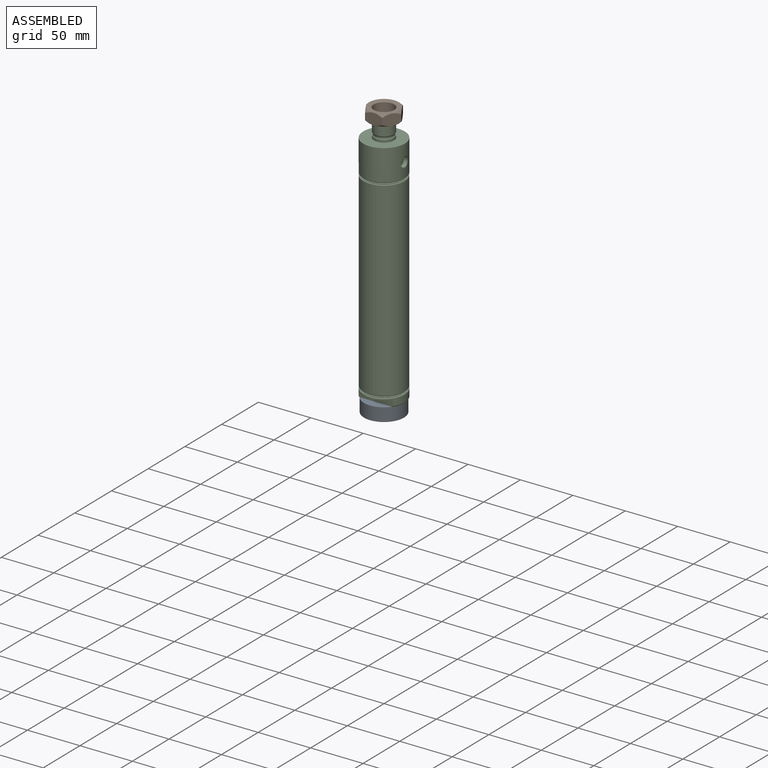
[diagram: assembled view]
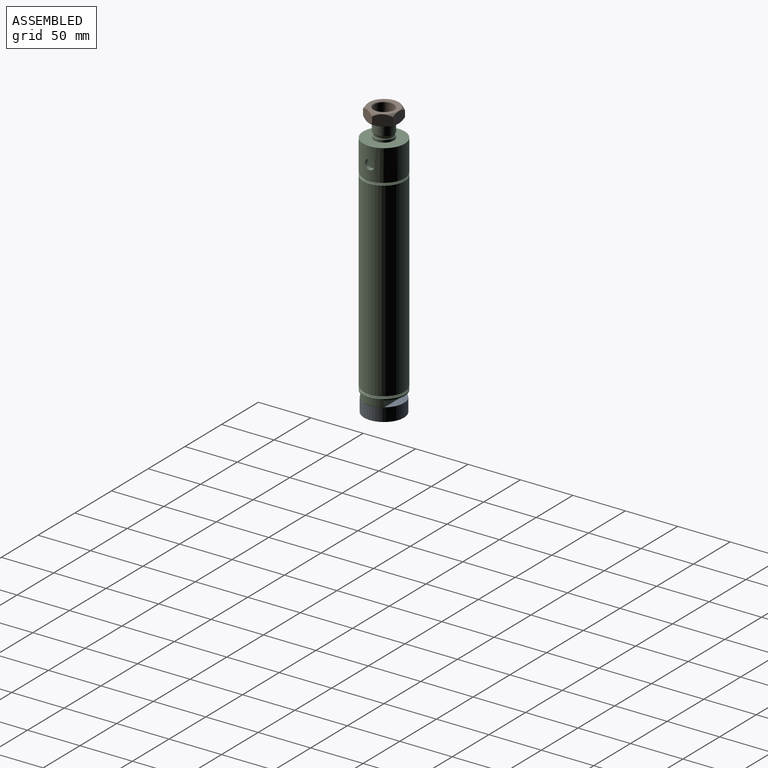
[diagram: assembled view, second angle]
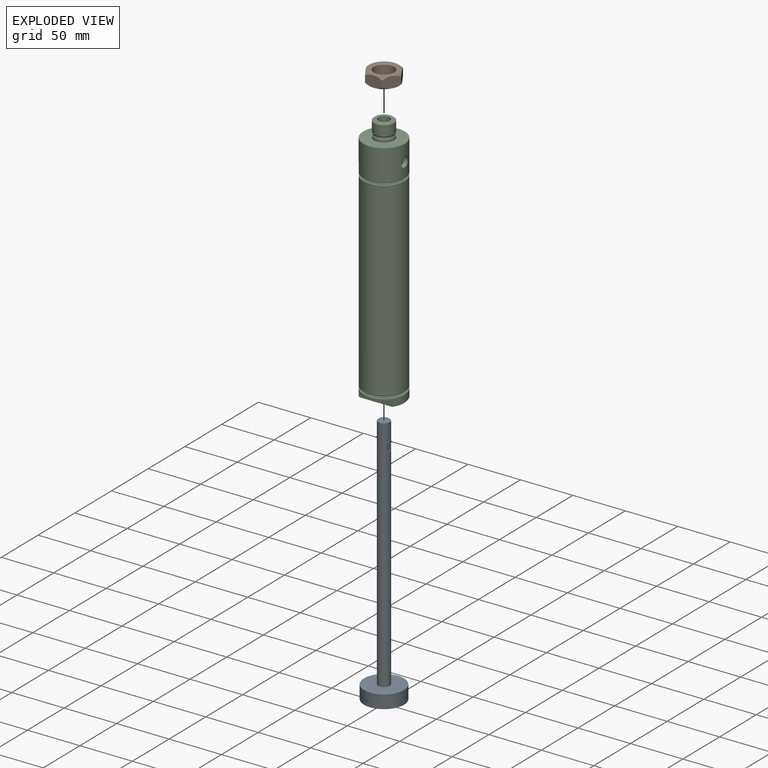
[diagram: exploded view]
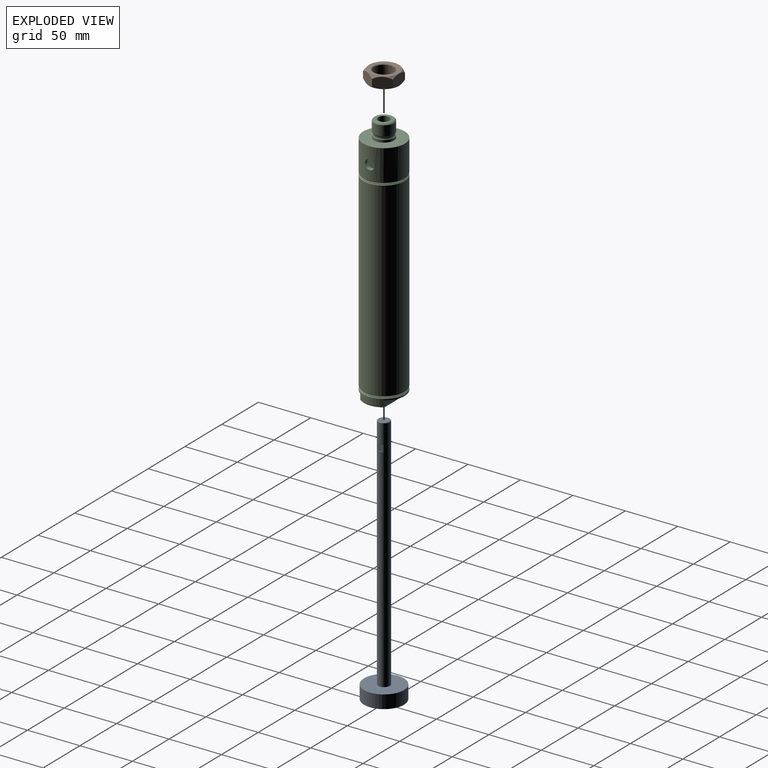
[diagram: exploded view, second angle]
ASSEMBLY  parts=3 mates=2
PART A: 12 faces, bbox 38.1x38.1x240.5 mm
  f0: cone r=5.04mm half-angle=45deg, axis (0,0,-1), area 23.9mm2, adj f1,f5
  f1: cylinder r=5.55mm len=227.33mm, axis (0,0,1), area 7854.4mm2, adj f0,f3,f6,f7,f8,f9,f10,f11
  f2: cylinder r=19.05mm len=38.1mm, axis (0,0,1), area 1520.1mm2, adj f3,f4
  f3: plane 38.1x38.1mm, normal (0,0,1), area 1043.3mm2, adj f1,f2
  f4: plane 38.1x38.1mm, normal (0,0,-1), area 1140.1mm2, adj f2
  f5: plane 10.08x10.08mm, normal (0,0,1), area 79.9mm2, adj f0
  f6: plane 5.48x0.72mm, normal (0,0,-1), area 2.7mm2, adj f1,f8
  f7: plane 5.48x0.72mm, normal (0,0,1), area 2.7mm2, adj f1,f8
  f8: plane 6.35x5.48mm, normal (0,1,0), area 34.8mm2, adj f1,f6,f7
  f9: plane 5.48x0.72mm, normal (0,0,-1), area 2.7mm2, adj f1,f10
  f10: plane 6.35x5.48mm, normal (0,-1,0), area 34.8mm2, adj f1,f9,f11
  f11: plane 5.48x0.72mm, normal (0,0,1), area 2.7mm2, adj f1,f10
PART B: 23 faces, bbox 32.9x32.9x10.7 mm
  f0: cone r=10.16mm half-angle=45deg, axis (0,0,-1), area 55.5mm2, adj f2,f22
  f1: cone r=9.53mm half-angle=45deg, axis (0,0,1), area 55.5mm2, adj f2,f15
  f2: cylinder r=9.53mm len=19.05mm, axis (0,0,1), area 562.4mm2, adj f0,f1
  f3: plane 16.43x10.67mm, normal (-1,0,0), area 150.4mm2, adj f4,f8,f12,f13,f19,f20
  f4: plane 14.23x10.67mm, normal (-0.5,-0.87,0), area 150.4mm2, adj f3,f5,f11,f12,f18,f19
  f5: plane 14.23x10.67mm, normal (0.5,-0.87,0), area 150.4mm2, adj f4,f6,f10,f11,f17,f18
  f6: plane 16.43x10.67mm, normal (1,0,0), area 150.4mm2, adj f5,f7,f9,f10,f16,f17
  f7: plane 14.23x10.67mm, normal (0.5,0.87,0), area 150.5mm2, adj f6,f8,f9,f14,f16,f21
  f8: plane 14.23x10.67mm, normal (-0.5,0.87,0), area 150.4mm2, adj f3,f7,f13,f14,f20,f21
  f9: cone r=14.22mm half-angle=45deg, axis (0,0,-1), area 15.4mm2, adj f6,f7,f15
  f10: cone r=14.22mm half-angle=45deg, axis (0,0,-1), area 15.4mm2, adj f5,f6,f15
  f11: cone r=14.22mm half-angle=45deg, axis (0,0,-1), area 15.4mm2, adj f4,f5,f15
  f12: cone r=14.22mm half-angle=45deg, axis (0,0,-1), area 15.4mm2, adj f3,f4,f15
  f13: cone r=14.22mm half-angle=45deg, axis (0,0,-1), area 15.4mm2, adj f3,f8,f15
  f14: cone r=14.22mm half-angle=45deg, axis (0,0,-1), area 15.4mm2, adj f7,f8,f15
  f15: plane 28.45x28.45mm, normal (0,0,1), area 311.3mm2, adj f1,f9,f10,f11,f12,f13,f14
  f16: cone r=16.42mm half-angle=45deg, axis (0,0,1), area 15.4mm2, adj f6,f7,f22
  f17: cone r=16.42mm half-angle=45deg, axis (0,0,1), area 15.4mm2, adj f5,f6,f22
  f18: cone r=16.42mm half-angle=45deg, axis (0,0,1), area 15.4mm2, adj f4,f5,f22
  f19: cone r=16.42mm half-angle=45deg, axis (0,0,1), area 15.4mm2, adj f3,f4,f22
  f20: cone r=16.42mm half-angle=45deg, axis (0,0,1), area 15.4mm2, adj f3,f8,f22
  f21: cone r=16.42mm half-angle=45deg, axis (0,0,1), area 15.4mm2, adj f7,f8,f22
  f22: plane 28.45x28.45mm, normal (0,0,-1), area 311.3mm2, adj f0,f16,f17,f18,f19,f20,f21
PART C: 39 faces, bbox 39.6x39.6x239.8 mm
  f0: torus R=10.9mm, axis (0,0,1), area 189.4mm2, adj f20,f26
  f1: cylinder r=19.81mm len=181.36mm, axis (0,0,1), area 22575.6mm2, adj f2,f10
  f2: cone r=19.81mm half-angle=45deg, axis (0,0,1), area 116.5mm2, adj f1,f3
  f3: cone r=19.14mm half-angle=45deg, axis (0,0,-1), area 103.1mm2, adj f2,f4
  f4: cone r=19.74mm half-angle=45deg, axis (0,0,1), area 103.1mm2, adj f3,f5
  f5: cone r=19.14mm half-angle=45deg, axis (0,0,-1), area 116.5mm2, adj f4,f6
  f6: cylinder r=19.81mm len=39.62mm, axis (0,0,1), area 423.5mm2, adj f5,f7,f22,f35,f36,f37,f38
  f7: cone r=19.81mm half-angle=45deg, axis (0,0,1), area 25.7mm2, adj f6,f34,f36,f38
  f8: cone r=4.94mm half-angle=1.7deg, axis (0,0,-1), area 2.1mm2, adj f33,f34
  f9: cylinder r=4.74mm len=9.49mm, axis (0,0,-1), area 120.2mm2, adj f32,f33
  f10: cone r=19.14mm half-angle=45deg, axis (0,0,-1), area 116.5mm2, adj f1,f11
  f11: cone r=19.74mm half-angle=45deg, axis (0,0,1), area 103.1mm2, adj f10,f12
  f12: cone r=19.14mm half-angle=45deg, axis (0,0,-1), area 103.1mm2, adj f11,f13
  f13: cone r=19.81mm half-angle=45deg, axis (0,0,1), area 116.5mm2, adj f12,f21
  f14: cone r=4.94mm half-angle=1.7deg, axis (1,0,0), area 0.1mm2, adj f21,f28
  f15: cylinder r=4.74mm len=9.49mm, axis (1,0,0), area 120.2mm2, adj f21,f28,f29,f31
  f16: cone r=8.51mm half-angle=45deg, axis (0,0,-1), area 81.4mm2, adj f20,f23
  f17: cylinder r=9.47mm len=18.95mm, axis (0,0,1), area 136.1mm2, adj f26,f27
  f18: cylinder r=19.05mm len=165.1mm, axis (0,0,1), area 19761.6mm2, adj f24,f25
  f19: cylinder r=5.55mm len=50.04mm, axis (0,0,1), area 1744.9mm2, adj f23,f24
  f20: cylinder r=9.53mm len=19.05mm, axis (0,0,1), area 577.6mm2, adj f0,f16
  f21: cylinder r=19.81mm len=39.62mm, axis (0,0,1), area 3627.1mm2, adj f13,f14,f15,f27,f28,f29,f30
  f22: cone r=19.81mm half-angle=45deg, axis (0,0,1), area 25.7mm2, adj f6,f34,f36,f38
  f23: plane 17.02x17.02mm, normal (0,0,1), area 130.7mm2, adj f16,f19
  f24: plane 38.1x38.1mm, normal (0,0,-1), area 1043.3mm2, adj f18,f19
  f25: plane 38.1x38.1mm, normal (0,0,1), area 1140.1mm2, adj f18
  f26: plane 18.95x18.95mm, normal (0,0,1), area 29.4mm2, adj f0,f17
  f27: plane 39.62x39.62mm, normal (0,0,1), area 951.1mm2, adj f17,f21
  f28: plane 3.3x0.49mm, normal (1,0,0), area 0.6mm2, adj f14,f15,f21
  f29: plane 3.3x0.49mm, normal (1,0,0), area 0.6mm2, adj f15,f21,f30
  f30: cone r=4.94mm half-angle=1.7deg, axis (1,0,0), area 0.1mm2, adj f21,f29
  f31: plane 9.49x9.49mm, normal (1,0,0), area 70.7mm2, adj f15
  f32: plane 9.49x9.49mm, normal (0,0,-1), area 70.7mm2, adj f9
  f33: plane 9.87x9.87mm, normal (0,0,-1), area 5.8mm2, adj f8,f9
  f34: plane 38.1x22.35mm, normal (0,0,-1), area 723.3mm2, adj f7,f8,f22,f36,f38
  f35: plane 32.72x8.64mm, normal (0,0,-1), area 198.5mm2, adj f6,f36
  f36: plane 32.73x6.36mm, normal (0,1,0), area 207mm2, adj f6,f7,f22,f34,f35
  f37: plane 32.72x8.64mm, normal (0,0,-1), area 198.5mm2, adj f6,f38
  f38: plane 32.73x6.36mm, normal (0,-1,0), area 207mm2, adj f6,f7,f22,f34,f37
PLACE A rot(axis=(0,0,1),90deg) t=(0,0,-37.27)mm
PLACE B rot(axis=(0,0,-1),90deg) t=(0,0,13.72)mm
PLACE C at identity fixed
MATE fastened B.f0 <-> C.f17  axis (0,0,-1) through (0,0,-6.35)mm
MATE slider A.f1 <-> C.f1  axis (0,0,1) through (0,0,-246.06)mm
